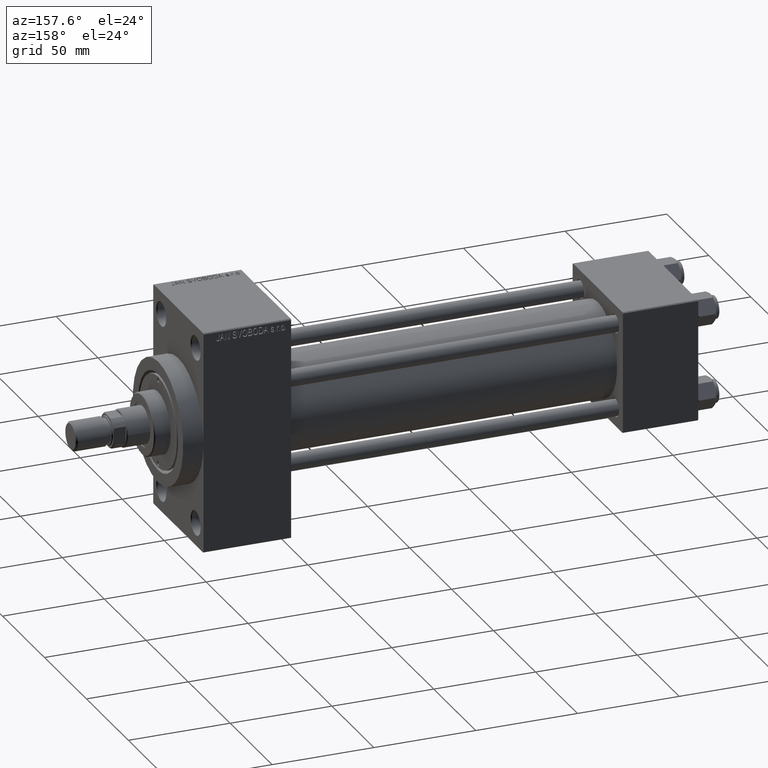
[diagram: clean part render]
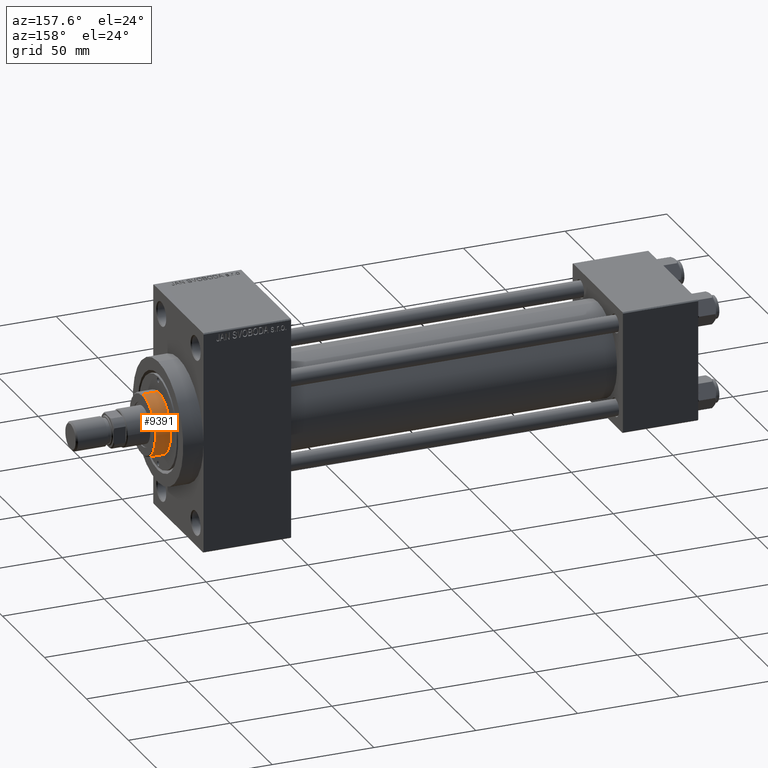
[diagram: same view with one face highlighted and labeled with its STEP entity id]
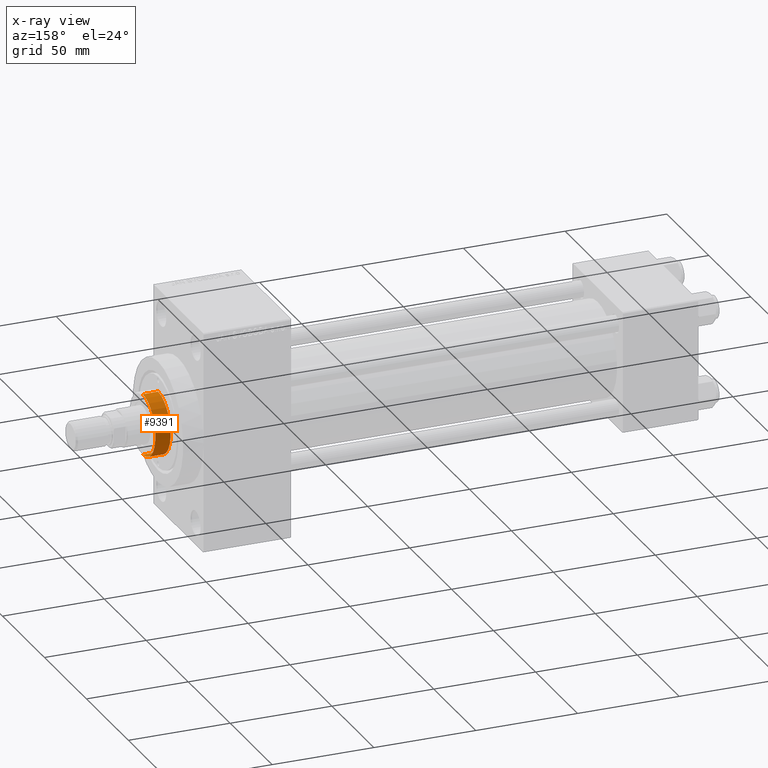
[diagram: x-ray of the same camera — body ghosted, the highlighted face saturated]
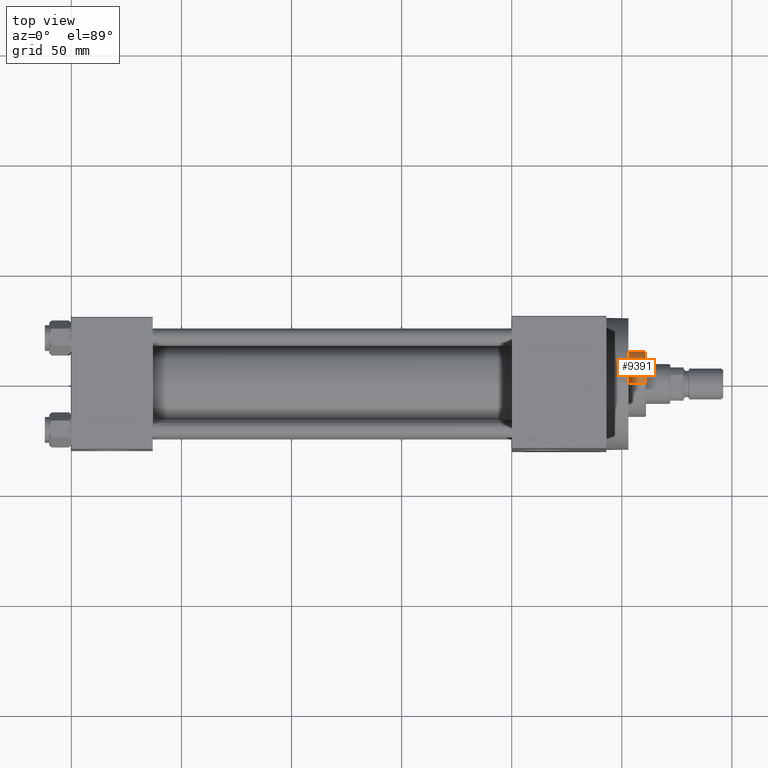
[diagram: same view with one face highlighted and labeled with its STEP entity id]
A machine part, auxiliary view. The second image highlights one B-rep face of the part: STEP entity #9391.
The next image is the same camera in x-ray: the body ghosted, the highlighted face saturated — about 0% of this face is hidden behind the body in this view.
A second angle (top view) of the same face is appended — the face is thin or edge-on in the first view.
In plain terms, the highlighted cylindrical surface (edge-blend (fillet) strip) has radius 15 mm, axis along (-1, 0, 0).
Its self-contained STEP definition (entity closure, byte-faithful):
#1234 = ORIENTED_EDGE ( 'NONE', *, *, #16655, .T. ) ;
#2279 = LINE ( 'NONE', #19994, #35967 ) ;
#3012 = VERTEX_POINT ( 'NONE', #13655 ) ;
#3752 = CYLINDRICAL_SURFACE ( 'NONE', #47270, 15.00000000000000000 ) ;
#4100 = AXIS2_PLACEMENT_3D ( 'NONE', #18032, #29875, #14624 ) ;
#4461 = DIRECTION ( 'NONE',  ( -1.000000000000000000, 0.000000000000000000, 0.000000000000000000 ) ) ;
#5065 = ORIENTED_EDGE ( 'NONE', *, *, #42990, .F. ) ;
#5438 = DIRECTION ( 'NONE',  ( -0.000000000000000000, -0.000000000000000000, -1.000000000000000000 ) ) ;
#9238 = VERTEX_POINT ( 'NONE', #44235 ) ;
#9391 = ADVANCED_FACE ( 'NONE', ( #40619 ), #3752, .T. ) ;
#10927 = ORIENTED_EDGE ( 'NONE', *, *, #28355, .T. ) ;
#12034 = DIRECTION ( 'NONE',  ( 0.000000000000000000, 0.000000000000000000, -1.000000000000000000 ) ) ;
#12201 = LINE ( 'NONE', #27498, #46345 ) ;
#13655 = CARTESIAN_POINT ( 'NONE',  ( -15.00000000000000000, 0.000000000000000000, 43.25999999999999801 ) ) ;
#14624 = DIRECTION ( 'NONE',  ( 1.000000000000000000, 0.000000000000000000, 0.000000000000000000 ) ) ;
#16655 = EDGE_CURVE ( 'NONE', #3012, #41207, #25062, .T. ) ;
#18032 = CARTESIAN_POINT ( 'NONE',  ( 0.000000000000000000, 0.000000000000000000, 43.25999999999999801 ) ) ;
#19994 = CARTESIAN_POINT ( 'NONE',  ( 15.00000000000000000, 1.836970198721029589E-15, 51.25999999999999801 ) ) ;
#25062 = CIRCLE ( 'NONE', #4100, 15.00000000000000000 ) ;
#26267 = CIRCLE ( 'NONE', #39458, 15.00000000000000000 ) ;
#26836 = DIRECTION ( 'NONE',  ( 1.000000000000000000, 0.000000000000000000, 0.000000000000000000 ) ) ;
#27498 = CARTESIAN_POINT ( 'NONE',  ( -15.00000000000000000, 0.000000000000000000, 51.25999999999999801 ) ) ;
#27639 = EDGE_CURVE ( 'NONE', #43791, #3012, #12201, .T. ) ;
#28355 = EDGE_CURVE ( 'NONE', #9238, #43791, #26267, .T. ) ;
#29503 = CARTESIAN_POINT ( 'NONE',  ( -15.00000000000000000, 0.000000000000000000, 50.75999999999998380 ) ) ;
#29875 = DIRECTION ( 'NONE',  ( 0.000000000000000000, 0.000000000000000000, 1.000000000000000000 ) ) ;
#30086 = EDGE_LOOP ( 'NONE', ( #5065, #10927, #42748, #1234 ) ) ;
#31793 = CARTESIAN_POINT ( 'NONE',  ( 15.00000000000000000, 1.836970198721029589E-15, 43.25999999999999801 ) ) ;
#35967 = VECTOR ( 'NONE', #5438, 1000.000000000000000 ) ;
#39458 = AXIS2_PLACEMENT_3D ( 'NONE', #41839, #12034, #26836 ) ;
#39682 = CARTESIAN_POINT ( 'NONE',  ( 0.000000000000000000, 0.000000000000000000, 51.25999999999999801 ) ) ;
#40619 = FACE_OUTER_BOUND ( 'NONE', #30086, .T. ) ;
#41207 = VERTEX_POINT ( 'NONE', #31793 ) ;
#41839 = CARTESIAN_POINT ( 'NONE',  ( 0.000000000000000000, 0.000000000000000000, 50.75999999999998380 ) ) ;
#42016 = DIRECTION ( 'NONE',  ( -0.000000000000000000, -0.000000000000000000, -1.000000000000000000 ) ) ;
#42748 = ORIENTED_EDGE ( 'NONE', *, *, #27639, .T. ) ;
#42990 = EDGE_CURVE ( 'NONE', #9238, #41207, #2279, .T. ) ;
#43791 = VERTEX_POINT ( 'NONE', #29503 ) ;
#44235 = CARTESIAN_POINT ( 'NONE',  ( 15.00000000000000000, 1.836970198721029589E-15, 50.75999999999998380 ) ) ;
#44466 = DIRECTION ( 'NONE',  ( -0.000000000000000000, -0.000000000000000000, -1.000000000000000000 ) ) ;
#46345 = VECTOR ( 'NONE', #42016, 1000.000000000000000 ) ;
#47270 = AXIS2_PLACEMENT_3D ( 'NONE', #39682, #44466, #4461 ) ;